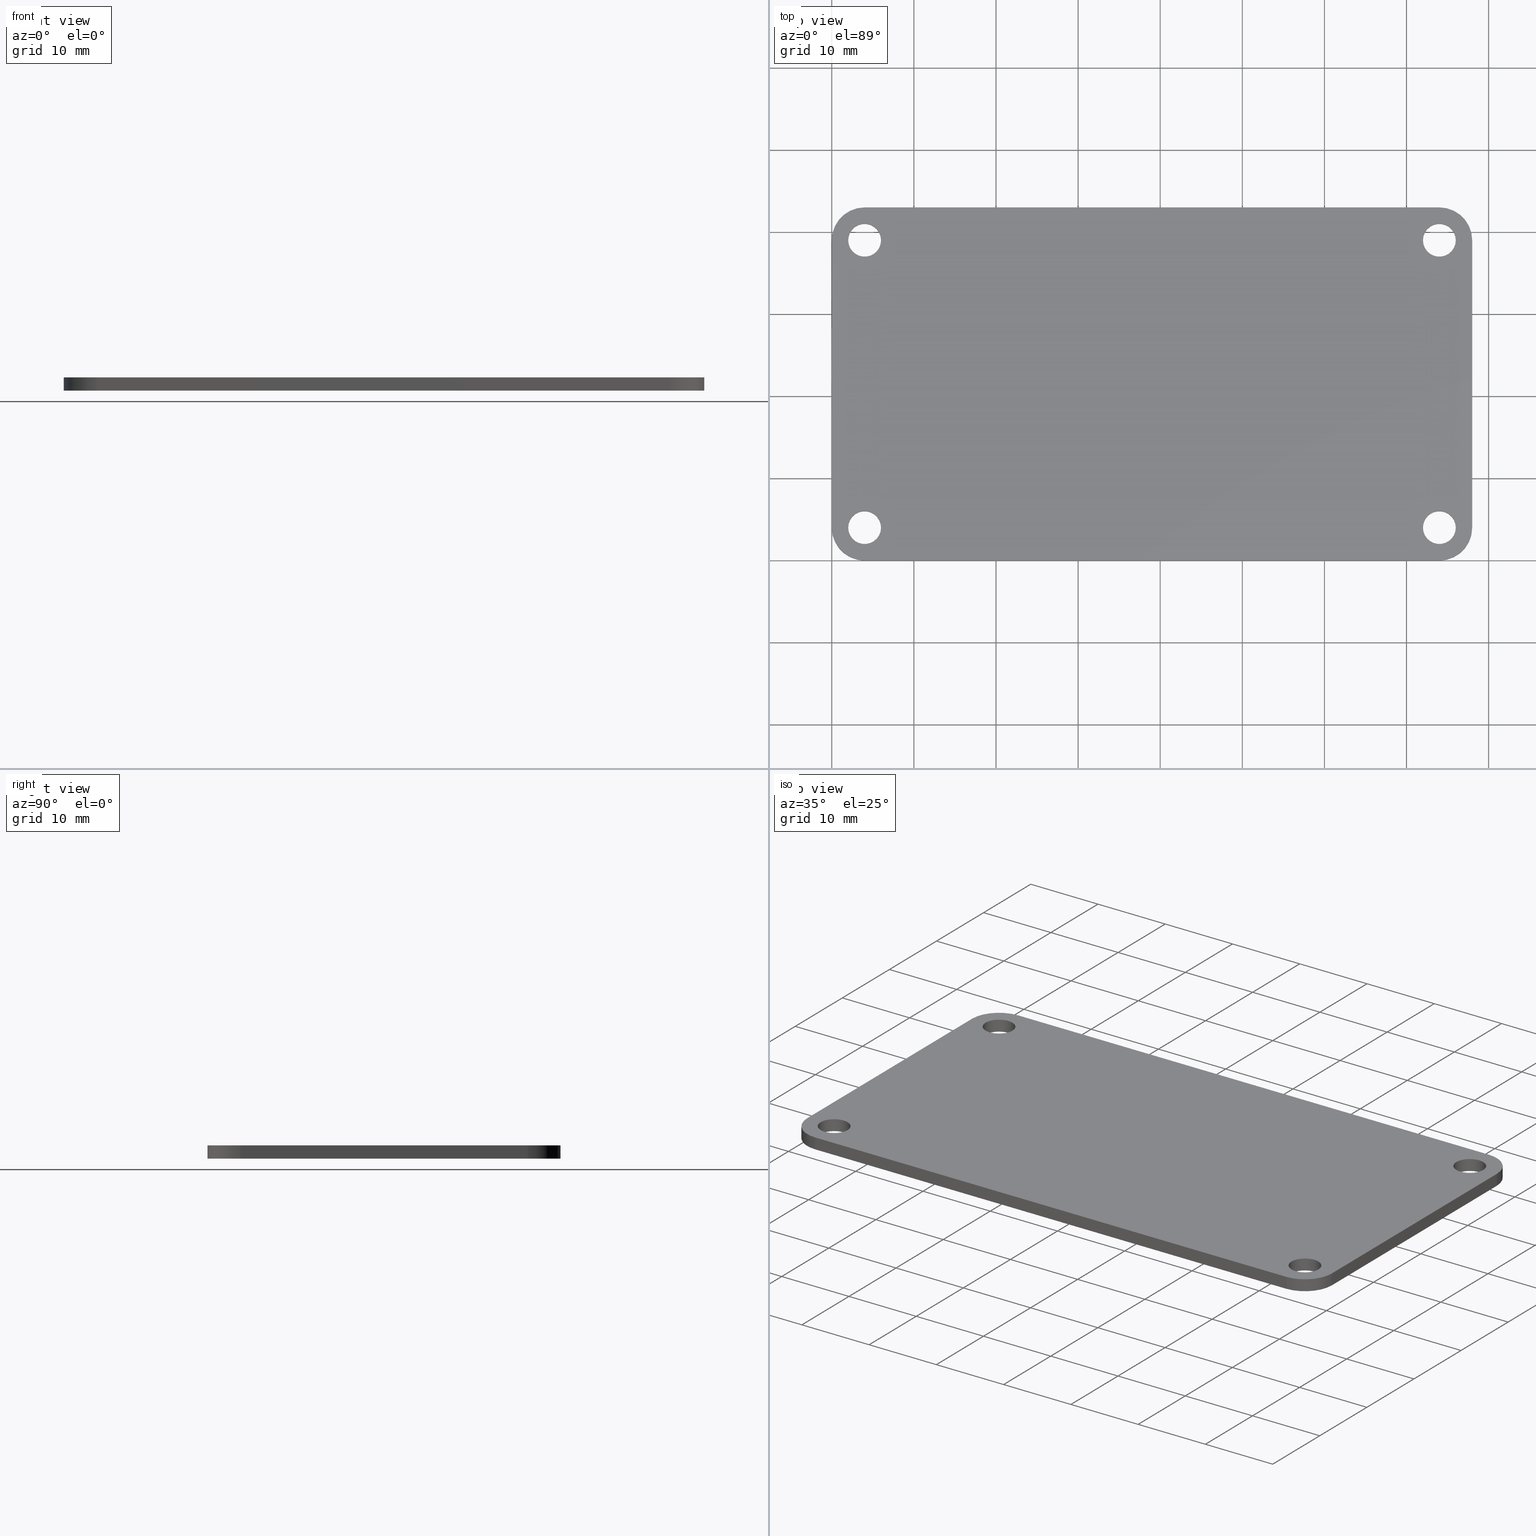
[diagram: canonical four-view strip — front | top / right | iso, engineering-drawing reading convention]
A machine part, canonical four-view strip (front | top / right | iso — engineering-drawing reading convention). The complete STEP part file that produces these views, byte-faithful:
ISO-10303-21;
HEADER;
FILE_DESCRIPTION(('Open CASCADE Model'),'2;1');
FILE_NAME('Open CASCADE Shape Model','2023-08-14T16:37:50',('Author'),(
    'Open CASCADE'),'Open CASCADE STEP processor 7.5','Open CASCADE 7.5'
  ,'Unknown');
FILE_SCHEMA(('AUTOMOTIVE_DESIGN { 1 0 10303 214 1 1 1 1 }'));
ENDSEC;
DATA;
#1 = APPLICATION_PROTOCOL_DEFINITION('international standard',
  'automotive_design',2000,#2);
#2 = APPLICATION_CONTEXT(
  'core data for automotive mechanical design processes');
#3 = SHAPE_DEFINITION_REPRESENTATION(#4,#10);
#4 = PRODUCT_DEFINITION_SHAPE('','',#5);
#5 = PRODUCT_DEFINITION('design','',#6,#9);
#6 = PRODUCT_DEFINITION_FORMATION('','',#7);
#7 = PRODUCT('PCB','PCB','',(#8));
#8 = PRODUCT_CONTEXT('',#2,'mechanical');
#9 = PRODUCT_DEFINITION_CONTEXT('part definition',#2,'design');
#10 = SHAPE_REPRESENTATION('',(#11,#15),#19);
#11 = AXIS2_PLACEMENT_3D('',#12,#13,#14);
#12 = CARTESIAN_POINT('',(0.,0.,0.));
#13 = DIRECTION('',(0.,0.,1.));
#14 = DIRECTION('',(1.,0.,-0.));
#15 = AXIS2_PLACEMENT_3D('',#16,#17,#18);
#16 = CARTESIAN_POINT('',(0.,0.,0.));
#17 = DIRECTION('',(0.,0.,1.));
#18 = DIRECTION('',(1.,0.,-0.));
#19 = ( GEOMETRIC_REPRESENTATION_CONTEXT(3) 
GLOBAL_UNCERTAINTY_ASSIGNED_CONTEXT((#23)) GLOBAL_UNIT_ASSIGNED_CONTEXT(
(#20,#21,#22)) REPRESENTATION_CONTEXT('Context #1',
  '3D Context with UNIT and UNCERTAINTY') );
#20 = ( LENGTH_UNIT() NAMED_UNIT(*) SI_UNIT(.MILLI.,.METRE.) );
#21 = ( NAMED_UNIT(*) PLANE_ANGLE_UNIT() SI_UNIT($,.RADIAN.) );
#22 = ( NAMED_UNIT(*) SI_UNIT($,.STERADIAN.) SOLID_ANGLE_UNIT() );
#23 = UNCERTAINTY_MEASURE_WITH_UNIT(LENGTH_MEASURE(1.E-07),#20,
  'distance_accuracy_value','confusion accuracy');
#24 = PRODUCT_RELATED_PRODUCT_CATEGORY('part',$,(#7));
#25 = SHAPE_DEFINITION_REPRESENTATION(#26,#32);
#26 = PRODUCT_DEFINITION_SHAPE('','',#27);
#27 = PRODUCT_DEFINITION('design','',#28,#31);
#28 = PRODUCT_DEFINITION_FORMATION('','',#29);
#29 = PRODUCT('Board','Board','',(#30));
#30 = PRODUCT_CONTEXT('',#2,'mechanical');
#31 = PRODUCT_DEFINITION_CONTEXT('part definition',#2,'design');
#32 = SHAPE_REPRESENTATION('',(#11,#33),#37);
#33 = AXIS2_PLACEMENT_3D('',#34,#35,#36);
#34 = CARTESIAN_POINT('',(0.,0.,-1.60000442));
#35 = DIRECTION('',(0.,0.,1.));
#36 = DIRECTION('',(1.,0.,-0.));
#37 = ( GEOMETRIC_REPRESENTATION_CONTEXT(3) 
GLOBAL_UNCERTAINTY_ASSIGNED_CONTEXT((#41)) GLOBAL_UNIT_ASSIGNED_CONTEXT(
(#38,#39,#40)) REPRESENTATION_CONTEXT('Context #1',
  '3D Context with UNIT and UNCERTAINTY') );
#38 = ( LENGTH_UNIT() NAMED_UNIT(*) SI_UNIT(.MILLI.,.METRE.) );
#39 = ( NAMED_UNIT(*) PLANE_ANGLE_UNIT() SI_UNIT($,.RADIAN.) );
#40 = ( NAMED_UNIT(*) SI_UNIT($,.STERADIAN.) SOLID_ANGLE_UNIT() );
#41 = UNCERTAINTY_MEASURE_WITH_UNIT(LENGTH_MEASURE(1.E-07),#38,
  'distance_accuracy_value','confusion accuracy');
#42 = ADVANCED_BREP_SHAPE_REPRESENTATION('',(#11,#43),#489);
#43 = MANIFOLD_SOLID_BREP('',#44);
#44 = CLOSED_SHELL('',(#45,#85,#118,#149,#182,#213,#246,#277,#301,#334,
    #367,#400,#433,#461));
#45 = ADVANCED_FACE('',(#46),#80,.T.);
#46 = FACE_BOUND('',#47,.T.);
#47 = EDGE_LOOP('',(#48,#58,#66,#74));
#48 = ORIENTED_EDGE('',*,*,#49,.T.);
#49 = EDGE_CURVE('',#50,#52,#54,.T.);
#50 = VERTEX_POINT('',#51);
#51 = CARTESIAN_POINT('',(-8.881784154862E-16,4.,0.));
#52 = VERTEX_POINT('',#53);
#53 = CARTESIAN_POINT('',(-8.881784154862E-16,4.,1.60000442));
#54 = LINE('',#55,#56);
#55 = CARTESIAN_POINT('',(-8.881784154862E-16,4.,0.));
#56 = VECTOR('',#57,1.);
#57 = DIRECTION('',(0.,0.,1.));
#58 = ORIENTED_EDGE('',*,*,#59,.T.);
#59 = EDGE_CURVE('',#52,#60,#62,.T.);
#60 = VERTEX_POINT('',#61);
#61 = CARTESIAN_POINT('',(-8.881784197001E-16,39.,1.60000442));
#62 = LINE('',#63,#64);
#63 = CARTESIAN_POINT('',(0.,4.,1.60000442));
#64 = VECTOR('',#65,1.);
#65 = DIRECTION('',(0.,1.,0.));
#66 = ORIENTED_EDGE('',*,*,#67,.F.);
#67 = EDGE_CURVE('',#68,#60,#70,.T.);
#68 = VERTEX_POINT('',#69);
#69 = CARTESIAN_POINT('',(-8.881784197001E-16,39.,0.));
#70 = LINE('',#71,#72);
#71 = CARTESIAN_POINT('',(-8.881784197001E-16,39.,0.));
#72 = VECTOR('',#73,1.);
#73 = DIRECTION('',(0.,0.,1.));
#74 = ORIENTED_EDGE('',*,*,#75,.F.);
#75 = EDGE_CURVE('',#50,#68,#76,.T.);
#76 = LINE('',#77,#78);
#77 = CARTESIAN_POINT('',(0.,4.,0.));
#78 = VECTOR('',#79,1.);
#79 = DIRECTION('',(0.,1.,0.));
#80 = PLANE('',#81);
#81 = AXIS2_PLACEMENT_3D('',#82,#83,#84);
#82 = CARTESIAN_POINT('',(0.,4.,0.));
#83 = DIRECTION('',(-1.,0.,0.));
#84 = DIRECTION('',(0.,1.,0.));
#85 = ADVANCED_FACE('',(#86),#113,.T.);
#86 = FACE_BOUND('',#87,.T.);
#87 = EDGE_LOOP('',(#88,#89,#98,#106));
#88 = ORIENTED_EDGE('',*,*,#67,.T.);
#89 = ORIENTED_EDGE('',*,*,#90,.T.);
#90 = EDGE_CURVE('',#60,#91,#93,.T.);
#91 = VERTEX_POINT('',#92);
#92 = CARTESIAN_POINT('',(4.,43.,1.60000442));
#93 = CIRCLE('',#94,4.001459203163);
#94 = AXIS2_PLACEMENT_3D('',#95,#96,#97);
#95 = CARTESIAN_POINT('',(4.001458937198,38.998541062802,1.60000442));
#96 = DIRECTION('',(0.,0.,-1.));
#97 = DIRECTION('',(-0.999999933533,3.646012926767E-04,0.));
#98 = ORIENTED_EDGE('',*,*,#99,.F.);
#99 = EDGE_CURVE('',#100,#91,#102,.T.);
#100 = VERTEX_POINT('',#101);
#101 = CARTESIAN_POINT('',(4.,43.,0.));
#102 = LINE('',#103,#104);
#103 = CARTESIAN_POINT('',(4.,43.,0.));
#104 = VECTOR('',#105,1.);
#105 = DIRECTION('',(0.,0.,1.));
#106 = ORIENTED_EDGE('',*,*,#107,.F.);
#107 = EDGE_CURVE('',#68,#100,#108,.T.);
#108 = CIRCLE('',#109,4.001459203163);
#109 = AXIS2_PLACEMENT_3D('',#110,#111,#112);
#110 = CARTESIAN_POINT('',(4.001458937198,38.998541062802,0.));
#111 = DIRECTION('',(0.,0.,-1.));
#112 = DIRECTION('',(-0.999999933533,3.646012926767E-04,0.));
#113 = CYLINDRICAL_SURFACE('',#114,4.001459203163);
#114 = AXIS2_PLACEMENT_3D('',#115,#116,#117);
#115 = CARTESIAN_POINT('',(4.001458937198,38.998541062802,0.));
#116 = DIRECTION('',(0.,0.,-1.));
#117 = DIRECTION('',(-0.999999933533,3.646012926767E-04,0.));
#118 = ADVANCED_FACE('',(#119),#144,.T.);
#119 = FACE_BOUND('',#120,.T.);
#120 = EDGE_LOOP('',(#121,#122,#130,#138));
#121 = ORIENTED_EDGE('',*,*,#99,.T.);
#122 = ORIENTED_EDGE('',*,*,#123,.T.);
#123 = EDGE_CURVE('',#91,#124,#126,.T.);
#124 = VERTEX_POINT('',#125);
#125 = CARTESIAN_POINT('',(74.,43.,1.60000442));
#126 = LINE('',#127,#128);
#127 = CARTESIAN_POINT('',(4.,43.,1.60000442));
#128 = VECTOR('',#129,1.);
#129 = DIRECTION('',(1.,0.,0.));
#130 = ORIENTED_EDGE('',*,*,#131,.F.);
#131 = EDGE_CURVE('',#132,#124,#134,.T.);
#132 = VERTEX_POINT('',#133);
#133 = CARTESIAN_POINT('',(74.,43.,0.));
#134 = LINE('',#135,#136);
#135 = CARTESIAN_POINT('',(74.,43.,0.));
#136 = VECTOR('',#137,1.);
#137 = DIRECTION('',(0.,0.,1.));
#138 = ORIENTED_EDGE('',*,*,#139,.F.);
#139 = EDGE_CURVE('',#100,#132,#140,.T.);
#140 = LINE('',#141,#142);
#141 = CARTESIAN_POINT('',(4.,43.,0.));
#142 = VECTOR('',#143,1.);
#143 = DIRECTION('',(1.,0.,0.));
#144 = PLANE('',#145);
#145 = AXIS2_PLACEMENT_3D('',#146,#147,#148);
#146 = CARTESIAN_POINT('',(4.,43.,0.));
#147 = DIRECTION('',(0.,1.,0.));
#148 = DIRECTION('',(1.,0.,0.));
#149 = ADVANCED_FACE('',(#150),#177,.T.);
#150 = FACE_BOUND('',#151,.T.);
#151 = EDGE_LOOP('',(#152,#153,#162,#170));
#152 = ORIENTED_EDGE('',*,*,#131,.T.);
#153 = ORIENTED_EDGE('',*,*,#154,.T.);
#154 = EDGE_CURVE('',#124,#155,#157,.T.);
#155 = VERTEX_POINT('',#156);
#156 = CARTESIAN_POINT('',(78.,39.,1.60000442));
#157 = CIRCLE('',#158,4.001459203163);
#158 = AXIS2_PLACEMENT_3D('',#159,#160,#161);
#159 = CARTESIAN_POINT('',(73.998541062802,38.998541062802,1.60000442));
#160 = DIRECTION('',(0.,0.,-1.));
#161 = DIRECTION('',(3.646012926767E-04,0.999999933533,0.));
#162 = ORIENTED_EDGE('',*,*,#163,.F.);
#163 = EDGE_CURVE('',#164,#155,#166,.T.);
#164 = VERTEX_POINT('',#165);
#165 = CARTESIAN_POINT('',(78.,39.,0.));
#166 = LINE('',#167,#168);
#167 = CARTESIAN_POINT('',(78.,39.,0.));
#168 = VECTOR('',#169,1.);
#169 = DIRECTION('',(0.,0.,1.));
#170 = ORIENTED_EDGE('',*,*,#171,.F.);
#171 = EDGE_CURVE('',#132,#164,#172,.T.);
#172 = CIRCLE('',#173,4.001459203163);
#173 = AXIS2_PLACEMENT_3D('',#174,#175,#176);
#174 = CARTESIAN_POINT('',(73.998541062802,38.998541062802,0.));
#175 = DIRECTION('',(0.,0.,-1.));
#176 = DIRECTION('',(3.646012926767E-04,0.999999933533,0.));
#177 = CYLINDRICAL_SURFACE('',#178,4.001459203163);
#178 = AXIS2_PLACEMENT_3D('',#179,#180,#181);
#179 = CARTESIAN_POINT('',(73.998541062802,38.998541062802,0.));
#180 = DIRECTION('',(0.,0.,-1.));
#181 = DIRECTION('',(3.646012926767E-04,0.999999933533,0.));
#182 = ADVANCED_FACE('',(#183),#208,.T.);
#183 = FACE_BOUND('',#184,.T.);
#184 = EDGE_LOOP('',(#185,#186,#194,#202));
#185 = ORIENTED_EDGE('',*,*,#163,.T.);
#186 = ORIENTED_EDGE('',*,*,#187,.T.);
#187 = EDGE_CURVE('',#155,#188,#190,.T.);
#188 = VERTEX_POINT('',#189);
#189 = CARTESIAN_POINT('',(78.,4.,1.60000442));
#190 = LINE('',#191,#192);
#191 = CARTESIAN_POINT('',(78.,39.,1.60000442));
#192 = VECTOR('',#193,1.);
#193 = DIRECTION('',(0.,-1.,0.));
#194 = ORIENTED_EDGE('',*,*,#195,.F.);
#195 = EDGE_CURVE('',#196,#188,#198,.T.);
#196 = VERTEX_POINT('',#197);
#197 = CARTESIAN_POINT('',(78.,4.,0.));
#198 = LINE('',#199,#200);
#199 = CARTESIAN_POINT('',(78.,4.,0.));
#200 = VECTOR('',#201,1.);
#201 = DIRECTION('',(0.,0.,1.));
#202 = ORIENTED_EDGE('',*,*,#203,.F.);
#203 = EDGE_CURVE('',#164,#196,#204,.T.);
#204 = LINE('',#205,#206);
#205 = CARTESIAN_POINT('',(78.,39.,0.));
#206 = VECTOR('',#207,1.);
#207 = DIRECTION('',(0.,-1.,0.));
#208 = PLANE('',#209);
#209 = AXIS2_PLACEMENT_3D('',#210,#211,#212);
#210 = CARTESIAN_POINT('',(78.,39.,0.));
#211 = DIRECTION('',(1.,0.,-0.));
#212 = DIRECTION('',(0.,-1.,0.));
#213 = ADVANCED_FACE('',(#214),#241,.T.);
#214 = FACE_BOUND('',#215,.T.);
#215 = EDGE_LOOP('',(#216,#217,#226,#234));
#216 = ORIENTED_EDGE('',*,*,#195,.T.);
#217 = ORIENTED_EDGE('',*,*,#218,.T.);
#218 = EDGE_CURVE('',#188,#219,#221,.T.);
#219 = VERTEX_POINT('',#220);
#220 = CARTESIAN_POINT('',(74.,-1.33226762955E-15,1.60000442));
#221 = CIRCLE('',#222,4.001459203163);
#222 = AXIS2_PLACEMENT_3D('',#223,#224,#225);
#223 = CARTESIAN_POINT('',(73.998541062802,4.001458937198,1.60000442));
#224 = DIRECTION('',(0.,0.,-1.));
#225 = DIRECTION('',(0.999999933533,-3.646012926758E-04,0.));
#226 = ORIENTED_EDGE('',*,*,#227,.F.);
#227 = EDGE_CURVE('',#228,#219,#230,.T.);
#228 = VERTEX_POINT('',#229);
#229 = CARTESIAN_POINT('',(74.,-1.33226762955E-15,0.));
#230 = LINE('',#231,#232);
#231 = CARTESIAN_POINT('',(74.,-1.33226762955E-15,0.));
#232 = VECTOR('',#233,1.);
#233 = DIRECTION('',(0.,0.,1.));
#234 = ORIENTED_EDGE('',*,*,#235,.F.);
#235 = EDGE_CURVE('',#196,#228,#236,.T.);
#236 = CIRCLE('',#237,4.001459203163);
#237 = AXIS2_PLACEMENT_3D('',#238,#239,#240);
#238 = CARTESIAN_POINT('',(73.998541062802,4.001458937198,0.));
#239 = DIRECTION('',(0.,0.,-1.));
#240 = DIRECTION('',(0.999999933533,-3.646012926758E-04,0.));
#241 = CYLINDRICAL_SURFACE('',#242,4.001459203163);
#242 = AXIS2_PLACEMENT_3D('',#243,#244,#245);
#243 = CARTESIAN_POINT('',(73.998541062802,4.001458937198,0.));
#244 = DIRECTION('',(0.,0.,-1.));
#245 = DIRECTION('',(0.999999933533,-3.646012926758E-04,0.));
#246 = ADVANCED_FACE('',(#247),#272,.T.);
#247 = FACE_BOUND('',#248,.T.);
#248 = EDGE_LOOP('',(#249,#250,#258,#266));
#249 = ORIENTED_EDGE('',*,*,#227,.T.);
#250 = ORIENTED_EDGE('',*,*,#251,.T.);
#251 = EDGE_CURVE('',#219,#252,#254,.T.);
#252 = VERTEX_POINT('',#253);
#253 = CARTESIAN_POINT('',(4.,-4.440892098501E-16,1.60000442));
#254 = LINE('',#255,#256);
#255 = CARTESIAN_POINT('',(74.,0.,1.60000442));
#256 = VECTOR('',#257,1.);
#257 = DIRECTION('',(-1.,0.,0.));
#258 = ORIENTED_EDGE('',*,*,#259,.F.);
#259 = EDGE_CURVE('',#260,#252,#262,.T.);
#260 = VERTEX_POINT('',#261);
#261 = CARTESIAN_POINT('',(4.,-4.440892098501E-16,0.));
#262 = LINE('',#263,#264);
#263 = CARTESIAN_POINT('',(4.,-4.440892098501E-16,0.));
#264 = VECTOR('',#265,1.);
#265 = DIRECTION('',(0.,0.,1.));
#266 = ORIENTED_EDGE('',*,*,#267,.F.);
#267 = EDGE_CURVE('',#228,#260,#268,.T.);
#268 = LINE('',#269,#270);
#269 = CARTESIAN_POINT('',(74.,0.,0.));
#270 = VECTOR('',#271,1.);
#271 = DIRECTION('',(-1.,0.,0.));
#272 = PLANE('',#273);
#273 = AXIS2_PLACEMENT_3D('',#274,#275,#276);
#274 = CARTESIAN_POINT('',(74.,0.,0.));
#275 = DIRECTION('',(0.,-1.,0.));
#276 = DIRECTION('',(-1.,0.,0.));
#277 = ADVANCED_FACE('',(#278),#296,.T.);
#278 = FACE_BOUND('',#279,.T.);
#279 = EDGE_LOOP('',(#280,#281,#288,#289));
#280 = ORIENTED_EDGE('',*,*,#259,.T.);
#281 = ORIENTED_EDGE('',*,*,#282,.T.);
#282 = EDGE_CURVE('',#252,#52,#283,.T.);
#283 = CIRCLE('',#284,4.001459203163);
#284 = AXIS2_PLACEMENT_3D('',#285,#286,#287);
#285 = CARTESIAN_POINT('',(4.001458937198,4.001458937198,1.60000442));
#286 = DIRECTION('',(0.,0.,-1.));
#287 = DIRECTION('',(-3.646012926771E-04,-0.999999933533,-0.));
#288 = ORIENTED_EDGE('',*,*,#49,.F.);
#289 = ORIENTED_EDGE('',*,*,#290,.F.);
#290 = EDGE_CURVE('',#260,#50,#291,.T.);
#291 = CIRCLE('',#292,4.001459203163);
#292 = AXIS2_PLACEMENT_3D('',#293,#294,#295);
#293 = CARTESIAN_POINT('',(4.001458937198,4.001458937198,0.));
#294 = DIRECTION('',(0.,0.,-1.));
#295 = DIRECTION('',(-3.646012926771E-04,-0.999999933533,-0.));
#296 = CYLINDRICAL_SURFACE('',#297,4.001459203163);
#297 = AXIS2_PLACEMENT_3D('',#298,#299,#300);
#298 = CARTESIAN_POINT('',(4.001458937198,4.001458937198,0.));
#299 = DIRECTION('',(0.,0.,-1.));
#300 = DIRECTION('',(-3.646012926771E-04,-0.999999933533,-0.));
#301 = ADVANCED_FACE('',(#302),#329,.F.);
#302 = FACE_BOUND('',#303,.T.);
#303 = EDGE_LOOP('',(#304,#314,#321,#322));
#304 = ORIENTED_EDGE('',*,*,#305,.T.);
#305 = EDGE_CURVE('',#306,#308,#310,.T.);
#306 = VERTEX_POINT('',#307);
#307 = CARTESIAN_POINT('',(6.,4.,0.));
#308 = VERTEX_POINT('',#309);
#309 = CARTESIAN_POINT('',(6.,4.,1.60000442));
#310 = LINE('',#311,#312);
#311 = CARTESIAN_POINT('',(6.,4.,0.));
#312 = VECTOR('',#313,1.);
#313 = DIRECTION('',(0.,0.,1.));
#314 = ORIENTED_EDGE('',*,*,#315,.T.);
#315 = EDGE_CURVE('',#308,#308,#316,.T.);
#316 = CIRCLE('',#317,2.);
#317 = AXIS2_PLACEMENT_3D('',#318,#319,#320);
#318 = CARTESIAN_POINT('',(4.,4.,1.60000442));
#319 = DIRECTION('',(0.,0.,1.));
#320 = DIRECTION('',(1.,0.,-0.));
#321 = ORIENTED_EDGE('',*,*,#305,.F.);
#322 = ORIENTED_EDGE('',*,*,#323,.F.);
#323 = EDGE_CURVE('',#306,#306,#324,.T.);
#324 = CIRCLE('',#325,2.);
#325 = AXIS2_PLACEMENT_3D('',#326,#327,#328);
#326 = CARTESIAN_POINT('',(4.,4.,0.));
#327 = DIRECTION('',(0.,0.,1.));
#328 = DIRECTION('',(1.,0.,-0.));
#329 = CYLINDRICAL_SURFACE('',#330,2.);
#330 = AXIS2_PLACEMENT_3D('',#331,#332,#333);
#331 = CARTESIAN_POINT('',(4.,4.,0.));
#332 = DIRECTION('',(-0.,-0.,-1.));
#333 = DIRECTION('',(1.,0.,-0.));
#334 = ADVANCED_FACE('',(#335),#362,.F.);
#335 = FACE_BOUND('',#336,.T.);
#336 = EDGE_LOOP('',(#337,#347,#354,#355));
#337 = ORIENTED_EDGE('',*,*,#338,.T.);
#338 = EDGE_CURVE('',#339,#341,#343,.T.);
#339 = VERTEX_POINT('',#340);
#340 = CARTESIAN_POINT('',(6.,39.,0.));
#341 = VERTEX_POINT('',#342);
#342 = CARTESIAN_POINT('',(6.,39.,1.60000442));
#343 = LINE('',#344,#345);
#344 = CARTESIAN_POINT('',(6.,39.,0.));
#345 = VECTOR('',#346,1.);
#346 = DIRECTION('',(0.,0.,1.));
#347 = ORIENTED_EDGE('',*,*,#348,.T.);
#348 = EDGE_CURVE('',#341,#341,#349,.T.);
#349 = CIRCLE('',#350,2.);
#350 = AXIS2_PLACEMENT_3D('',#351,#352,#353);
#351 = CARTESIAN_POINT('',(4.,39.,1.60000442));
#352 = DIRECTION('',(0.,0.,1.));
#353 = DIRECTION('',(1.,0.,-0.));
#354 = ORIENTED_EDGE('',*,*,#338,.F.);
#355 = ORIENTED_EDGE('',*,*,#356,.F.);
#356 = EDGE_CURVE('',#339,#339,#357,.T.);
#357 = CIRCLE('',#358,2.);
#358 = AXIS2_PLACEMENT_3D('',#359,#360,#361);
#359 = CARTESIAN_POINT('',(4.,39.,0.));
#360 = DIRECTION('',(0.,0.,1.));
#361 = DIRECTION('',(1.,0.,-0.));
#362 = CYLINDRICAL_SURFACE('',#363,2.);
#363 = AXIS2_PLACEMENT_3D('',#364,#365,#366);
#364 = CARTESIAN_POINT('',(4.,39.,0.));
#365 = DIRECTION('',(-0.,-0.,-1.));
#366 = DIRECTION('',(1.,0.,-0.));
#367 = ADVANCED_FACE('',(#368),#395,.F.);
#368 = FACE_BOUND('',#369,.T.);
#369 = EDGE_LOOP('',(#370,#380,#387,#388));
#370 = ORIENTED_EDGE('',*,*,#371,.T.);
#371 = EDGE_CURVE('',#372,#374,#376,.T.);
#372 = VERTEX_POINT('',#373);
#373 = CARTESIAN_POINT('',(76.,4.,0.));
#374 = VERTEX_POINT('',#375);
#375 = CARTESIAN_POINT('',(76.,4.,1.60000442));
#376 = LINE('',#377,#378);
#377 = CARTESIAN_POINT('',(76.,4.,0.));
#378 = VECTOR('',#379,1.);
#379 = DIRECTION('',(0.,0.,1.));
#380 = ORIENTED_EDGE('',*,*,#381,.T.);
#381 = EDGE_CURVE('',#374,#374,#382,.T.);
#382 = CIRCLE('',#383,2.);
#383 = AXIS2_PLACEMENT_3D('',#384,#385,#386);
#384 = CARTESIAN_POINT('',(74.,4.,1.60000442));
#385 = DIRECTION('',(0.,0.,1.));
#386 = DIRECTION('',(1.,0.,-0.));
#387 = ORIENTED_EDGE('',*,*,#371,.F.);
#388 = ORIENTED_EDGE('',*,*,#389,.F.);
#389 = EDGE_CURVE('',#372,#372,#390,.T.);
#390 = CIRCLE('',#391,2.);
#391 = AXIS2_PLACEMENT_3D('',#392,#393,#394);
#392 = CARTESIAN_POINT('',(74.,4.,0.));
#393 = DIRECTION('',(0.,0.,1.));
#394 = DIRECTION('',(1.,0.,-0.));
#395 = CYLINDRICAL_SURFACE('',#396,2.);
#396 = AXIS2_PLACEMENT_3D('',#397,#398,#399);
#397 = CARTESIAN_POINT('',(74.,4.,0.));
#398 = DIRECTION('',(-0.,-0.,-1.));
#399 = DIRECTION('',(1.,0.,-0.));
#400 = ADVANCED_FACE('',(#401),#428,.F.);
#401 = FACE_BOUND('',#402,.T.);
#402 = EDGE_LOOP('',(#403,#413,#420,#421));
#403 = ORIENTED_EDGE('',*,*,#404,.T.);
#404 = EDGE_CURVE('',#405,#407,#409,.T.);
#405 = VERTEX_POINT('',#406);
#406 = CARTESIAN_POINT('',(76.,39.,0.));
#407 = VERTEX_POINT('',#408);
#408 = CARTESIAN_POINT('',(76.,39.,1.60000442));
#409 = LINE('',#410,#411);
#410 = CARTESIAN_POINT('',(76.,39.,0.));
#411 = VECTOR('',#412,1.);
#412 = DIRECTION('',(0.,0.,1.));
#413 = ORIENTED_EDGE('',*,*,#414,.T.);
#414 = EDGE_CURVE('',#407,#407,#415,.T.);
#415 = CIRCLE('',#416,2.);
#416 = AXIS2_PLACEMENT_3D('',#417,#418,#419);
#417 = CARTESIAN_POINT('',(74.,39.,1.60000442));
#418 = DIRECTION('',(0.,0.,1.));
#419 = DIRECTION('',(1.,0.,-0.));
#420 = ORIENTED_EDGE('',*,*,#404,.F.);
#421 = ORIENTED_EDGE('',*,*,#422,.F.);
#422 = EDGE_CURVE('',#405,#405,#423,.T.);
#423 = CIRCLE('',#424,2.);
#424 = AXIS2_PLACEMENT_3D('',#425,#426,#427);
#425 = CARTESIAN_POINT('',(74.,39.,0.));
#426 = DIRECTION('',(0.,0.,1.));
#427 = DIRECTION('',(1.,0.,-0.));
#428 = CYLINDRICAL_SURFACE('',#429,2.);
#429 = AXIS2_PLACEMENT_3D('',#430,#431,#432);
#430 = CARTESIAN_POINT('',(74.,39.,0.));
#431 = DIRECTION('',(-0.,-0.,-1.));
#432 = DIRECTION('',(1.,0.,-0.));
#433 = ADVANCED_FACE('',(#434,#444,#447,#450,#453),#456,.T.);
#434 = FACE_BOUND('',#435,.T.);
#435 = EDGE_LOOP('',(#436,#437,#438,#439,#440,#441,#442,#443));
#436 = ORIENTED_EDGE('',*,*,#75,.T.);
#437 = ORIENTED_EDGE('',*,*,#107,.T.);
#438 = ORIENTED_EDGE('',*,*,#139,.T.);
#439 = ORIENTED_EDGE('',*,*,#171,.T.);
#440 = ORIENTED_EDGE('',*,*,#203,.T.);
#441 = ORIENTED_EDGE('',*,*,#235,.T.);
#442 = ORIENTED_EDGE('',*,*,#267,.T.);
#443 = ORIENTED_EDGE('',*,*,#290,.T.);
#444 = FACE_BOUND('',#445,.T.);
#445 = EDGE_LOOP('',(#446));
#446 = ORIENTED_EDGE('',*,*,#323,.T.);
#447 = FACE_BOUND('',#448,.T.);
#448 = EDGE_LOOP('',(#449));
#449 = ORIENTED_EDGE('',*,*,#356,.T.);
#450 = FACE_BOUND('',#451,.T.);
#451 = EDGE_LOOP('',(#452));
#452 = ORIENTED_EDGE('',*,*,#389,.T.);
#453 = FACE_BOUND('',#454,.T.);
#454 = EDGE_LOOP('',(#455));
#455 = ORIENTED_EDGE('',*,*,#422,.T.);
#456 = PLANE('',#457);
#457 = AXIS2_PLACEMENT_3D('',#458,#459,#460);
#458 = CARTESIAN_POINT('',(39.,21.5,0.));
#459 = DIRECTION('',(-0.,-0.,-1.));
#460 = DIRECTION('',(-1.,0.,0.));
#461 = ADVANCED_FACE('',(#462,#472,#475,#478,#481),#484,.F.);
#462 = FACE_BOUND('',#463,.F.);
#463 = EDGE_LOOP('',(#464,#465,#466,#467,#468,#469,#470,#471));
#464 = ORIENTED_EDGE('',*,*,#59,.T.);
#465 = ORIENTED_EDGE('',*,*,#90,.T.);
#466 = ORIENTED_EDGE('',*,*,#123,.T.);
#467 = ORIENTED_EDGE('',*,*,#154,.T.);
#468 = ORIENTED_EDGE('',*,*,#187,.T.);
#469 = ORIENTED_EDGE('',*,*,#218,.T.);
#470 = ORIENTED_EDGE('',*,*,#251,.T.);
#471 = ORIENTED_EDGE('',*,*,#282,.T.);
#472 = FACE_BOUND('',#473,.F.);
#473 = EDGE_LOOP('',(#474));
#474 = ORIENTED_EDGE('',*,*,#315,.T.);
#475 = FACE_BOUND('',#476,.F.);
#476 = EDGE_LOOP('',(#477));
#477 = ORIENTED_EDGE('',*,*,#348,.T.);
#478 = FACE_BOUND('',#479,.F.);
#479 = EDGE_LOOP('',(#480));
#480 = ORIENTED_EDGE('',*,*,#381,.T.);
#481 = FACE_BOUND('',#482,.F.);
#482 = EDGE_LOOP('',(#483));
#483 = ORIENTED_EDGE('',*,*,#414,.T.);
#484 = PLANE('',#485);
#485 = AXIS2_PLACEMENT_3D('',#486,#487,#488);
#486 = CARTESIAN_POINT('',(39.,21.5,1.60000442));
#487 = DIRECTION('',(-0.,-0.,-1.));
#488 = DIRECTION('',(-1.,0.,0.));
#489 = ( GEOMETRIC_REPRESENTATION_CONTEXT(3) 
GLOBAL_UNCERTAINTY_ASSIGNED_CONTEXT((#493)) GLOBAL_UNIT_ASSIGNED_CONTEXT
((#490,#491,#492)) REPRESENTATION_CONTEXT('Context #1',
  '3D Context with UNIT and UNCERTAINTY') );
#490 = ( LENGTH_UNIT() NAMED_UNIT(*) SI_UNIT(.MILLI.,.METRE.) );
#491 = ( NAMED_UNIT(*) PLANE_ANGLE_UNIT() SI_UNIT($,.RADIAN.) );
#492 = ( NAMED_UNIT(*) SI_UNIT($,.STERADIAN.) SOLID_ANGLE_UNIT() );
#493 = UNCERTAINTY_MEASURE_WITH_UNIT(LENGTH_MEASURE(1.E-07),#490,
  'distance_accuracy_value','confusion accuracy');
#494 = SHAPE_DEFINITION_REPRESENTATION(#495,#42);
#495 = PRODUCT_DEFINITION_SHAPE('','',#496);
#496 = PRODUCT_DEFINITION('design','',#497,#500);
#497 = PRODUCT_DEFINITION_FORMATION('','',#498);
#498 = PRODUCT('Open CASCADE STEP translator 7.5 1.1.1',
  'Open CASCADE STEP translator 7.5 1.1.1','',(#499));
#499 = PRODUCT_CONTEXT('',#2,'mechanical');
#500 = PRODUCT_DEFINITION_CONTEXT('part definition',#2,'design');
#501 = CONTEXT_DEPENDENT_SHAPE_REPRESENTATION(#502,#504);
#502 = ( REPRESENTATION_RELATIONSHIP('','',#42,#32) 
REPRESENTATION_RELATIONSHIP_WITH_TRANSFORMATION(#503) 
SHAPE_REPRESENTATION_RELATIONSHIP() );
#503 = ITEM_DEFINED_TRANSFORMATION('','',#11,#33);
#504 = PRODUCT_DEFINITION_SHAPE('Placement','Placement of an item',#505
  );
#505 = NEXT_ASSEMBLY_USAGE_OCCURRENCE('1','','',#27,#496,$);
#506 = PRODUCT_RELATED_PRODUCT_CATEGORY('part',$,(#498));
#507 = CONTEXT_DEPENDENT_SHAPE_REPRESENTATION(#508,#510);
#508 = ( REPRESENTATION_RELATIONSHIP('','',#32,#10) 
REPRESENTATION_RELATIONSHIP_WITH_TRANSFORMATION(#509) 
SHAPE_REPRESENTATION_RELATIONSHIP() );
#509 = ITEM_DEFINED_TRANSFORMATION('','',#11,#15);
#510 = PRODUCT_DEFINITION_SHAPE('Placement','Placement of an item',#511
  );
#511 = NEXT_ASSEMBLY_USAGE_OCCURRENCE('2','','',#5,#27,$);
#512 = PRODUCT_RELATED_PRODUCT_CATEGORY('part',$,(#29));
#513 = MECHANICAL_DESIGN_GEOMETRIC_PRESENTATION_REPRESENTATION('',(#514)
  ,#489);
#514 = STYLED_ITEM('color',(#515),#43);
#515 = PRESENTATION_STYLE_ASSIGNMENT((#516,#522));
#516 = SURFACE_STYLE_USAGE(.BOTH.,#517);
#517 = SURFACE_SIDE_STYLE('',(#518));
#518 = SURFACE_STYLE_FILL_AREA(#519);
#519 = FILL_AREA_STYLE('',(#520));
#520 = FILL_AREA_STYLE_COLOUR('',#521);
#521 = COLOUR_RGB('',0.,0.501960785193,0.);
#522 = CURVE_STYLE('',#523,POSITIVE_LENGTH_MEASURE(0.1),#521);
#523 = DRAUGHTING_PRE_DEFINED_CURVE_FONT('continuous');
ENDSEC;
END-ISO-10303-21;
